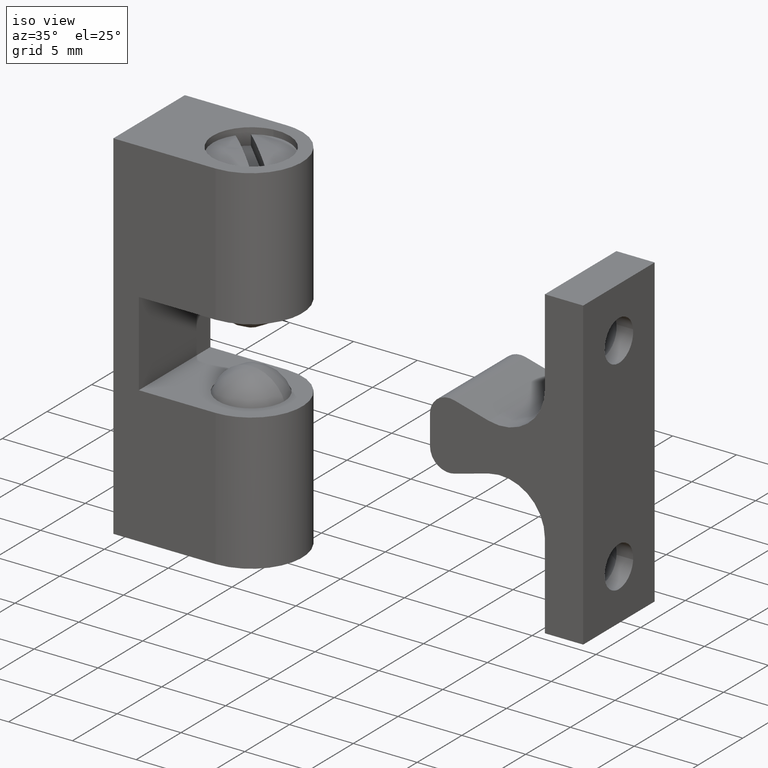
[diagram: clean part render]
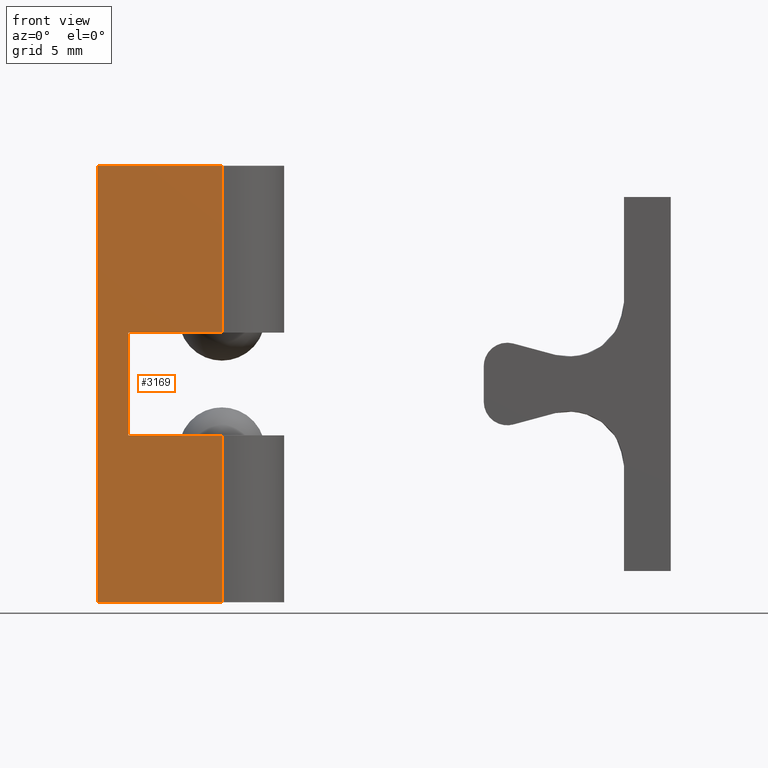
[diagram: tour spotlight — one face highlighted and labeled with its STEP entity id]
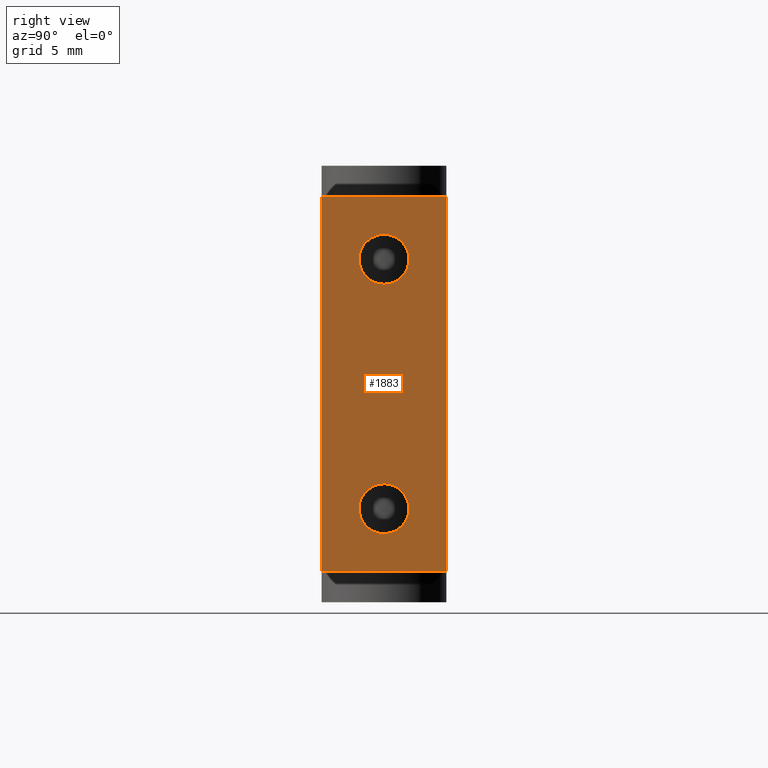
[diagram: tour spotlight — one face highlighted and labeled with its STEP entity id]
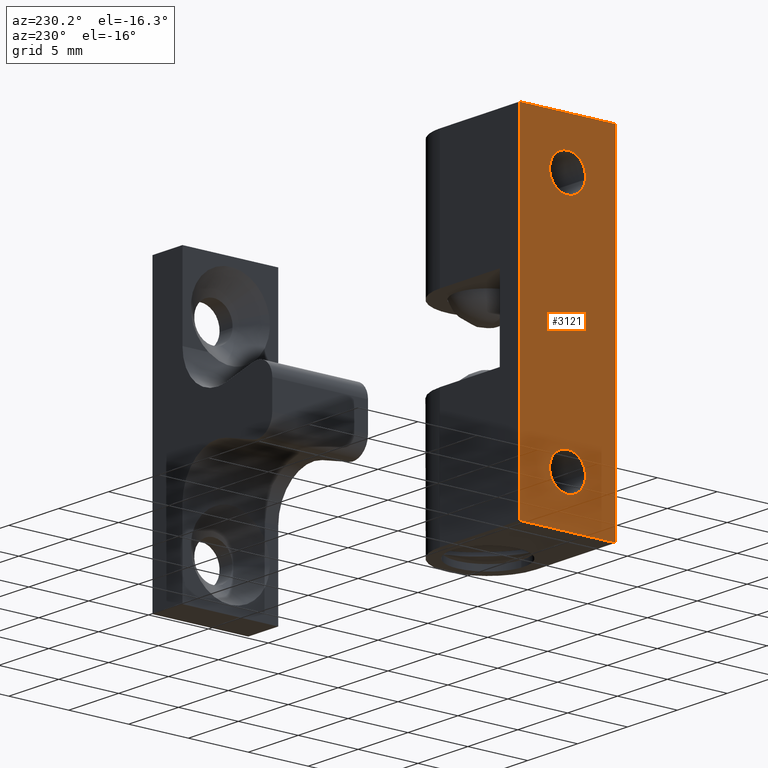
[diagram: tour spotlight — one face highlighted and labeled with its STEP entity id]
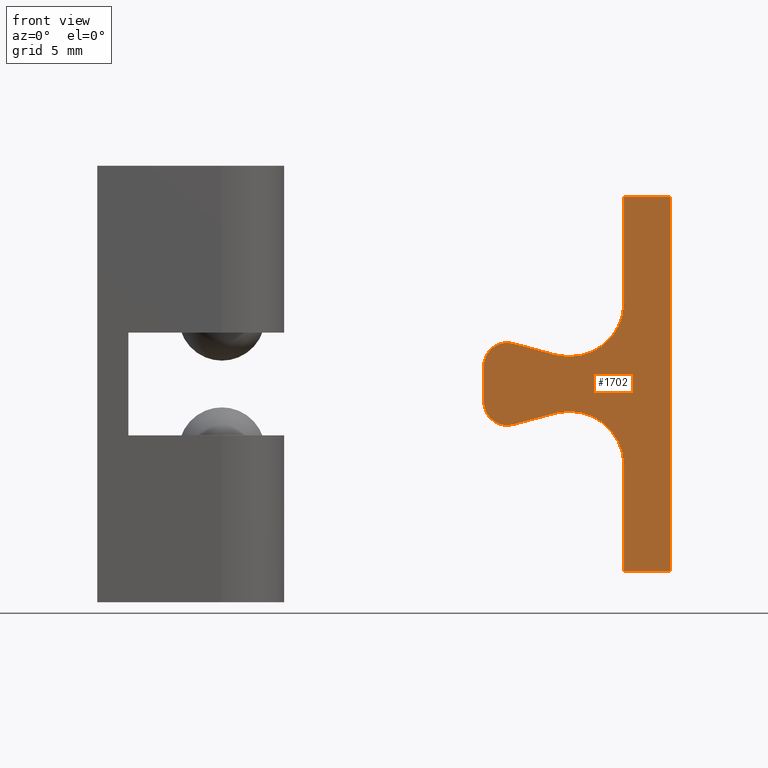
[diagram: tour spotlight — one face highlighted and labeled with its STEP entity id]
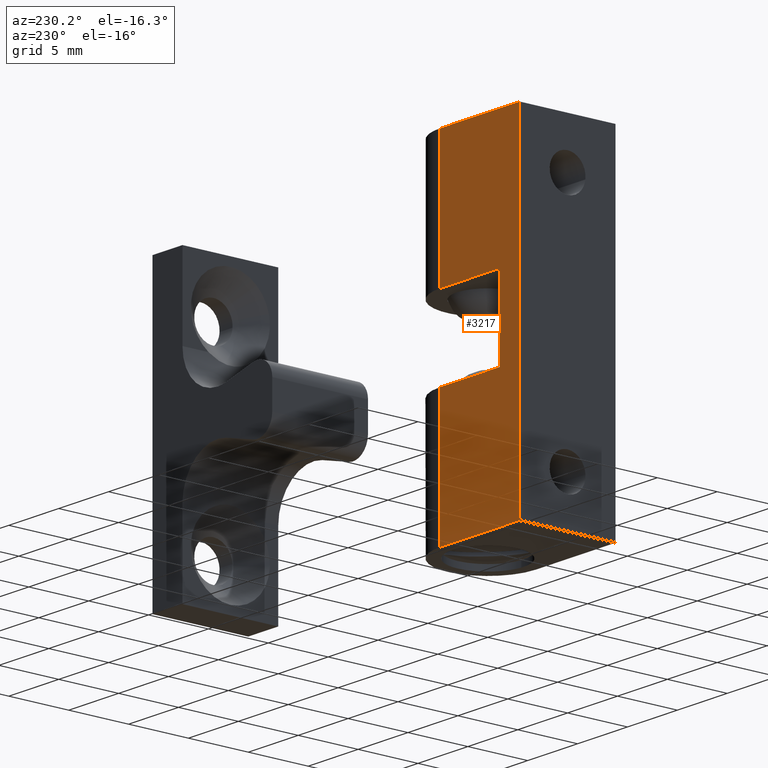
[diagram: tour spotlight — one face highlighted and labeled with its STEP entity id]
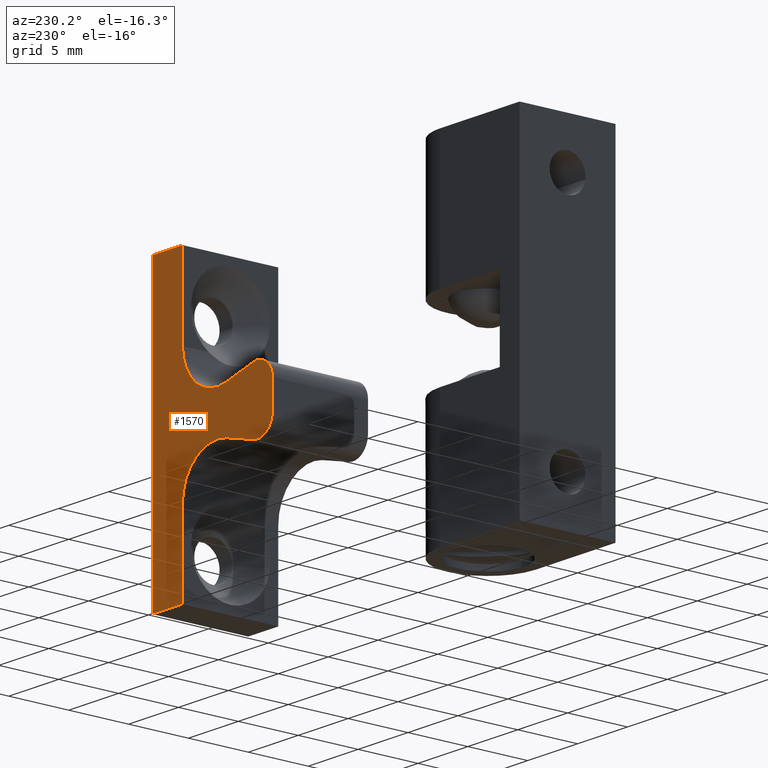
[diagram: tour spotlight — one face highlighted and labeled with its STEP entity id]
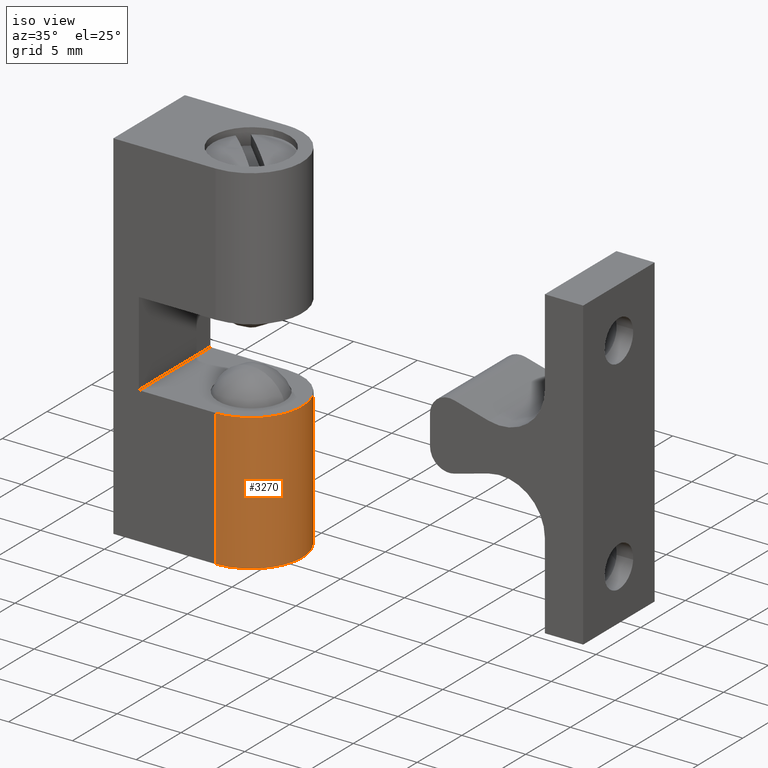
[diagram: tour spotlight — one face highlighted and labeled with its STEP entity id]
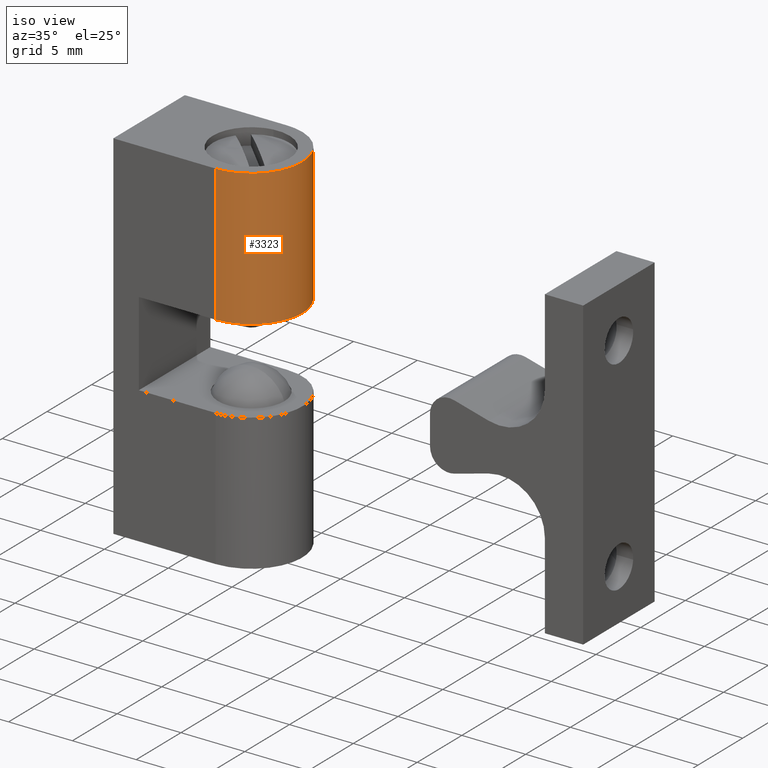
[diagram: tour spotlight — one face highlighted and labeled with its STEP entity id]
A machine part: a face-by-face anatomy tour. The part has 68 B-rep faces; the first image is the clean iso view, then the 8 largest visible faces are spotlighted one at a time (largest first), each with its STEP entity span.

Face 1 — front view, entity #3169. In plain terms, the highlighted face is a freeform B-spline surface patch.
Definition (entity closure, byte-faithful):
#3052=CARTESIAN_POINT('',(1.999900000000000,-4.0,3.300000000000000));
#3053=VERTEX_POINT('',#3052);
#3059=CARTESIAN_POINT('',(1.999900000000000,-4.0,-3.300000000000000));
#3060=VERTEX_POINT('',#3059);
#3061=CARTESIAN_POINT('',(1.999900000000000,-4.0,3.300000000000000));
#3062=CARTESIAN_POINT('',(1.999900000000000,-4.0,-3.300000000000000));
#3063=QUASI_UNIFORM_CURVE('',1,(#3061,#3062),.UNSPECIFIED.,.F.,.U.);
#3064=EDGE_CURVE('',#3053,#3060,#3063,.T.);
#3081=CARTESIAN_POINT('',(4.898425E-016,-4.0,14.0));
#3082=VERTEX_POINT('',#3081);
#3095=CARTESIAN_POINT('',(4.898425E-016,-4.0,-14.0));
#3096=VERTEX_POINT('',#3095);
#3102=CARTESIAN_POINT('',(4.898425E-016,-4.0,-14.0));
#3103=CARTESIAN_POINT('',(4.898425E-016,-4.0,14.0));
#3104=QUASI_UNIFORM_CURVE('',1,(#3102,#3103),.UNSPECIFIED.,.F.,.U.);
#3105=EDGE_CURVE('',#3096,#3082,#3104,.T.);
#3122=CARTESIAN_POINT('',(-0.399594960913378,-4.0,15.398599945730570));
#3123=CARTESIAN_POINT('',(-0.399594960913378,-4.0,-15.398600696749090));
#3124=CARTESIAN_POINT('',(8.399494603289984,-4.0,15.398599945730570));
#3125=CARTESIAN_POINT('',(8.399494603289984,-4.0,-15.398600696749090));
#3126=B_SPLINE_SURFACE_WITH_KNOTS('',1,1,((#3122,#3124),(#3123,#3125)),.UNSPECIFIED.,.F.,.F.,.U.,(2,2),(2,2),(0.0,30.797200642479670),(0.0,8.799089564203362),.UNSPECIFIED.);
#3127=ORIENTED_EDGE('',*,*,#3064,.F.);
#3128=CARTESIAN_POINT('',(7.999900000000001,-4.0,3.300000000000000));
#3129=VERTEX_POINT('',#3128);
#3130=CARTESIAN_POINT('',(7.999900000000001,-4.0,3.300000000000000));
#3131=CARTESIAN_POINT('',(1.999900000000000,-4.0,3.300000000000000));
#3132=QUASI_UNIFORM_CURVE('',1,(#3130,#3131),.UNSPECIFIED.,.F.,.U.);
#3133=EDGE_CURVE('',#3129,#3053,#3132,.T.);
#3134=ORIENTED_EDGE('',*,*,#3133,.F.);
#3135=CARTESIAN_POINT('',(7.999900000000001,-4.0,14.0));
#3136=VERTEX_POINT('',#3135);
#3137=CARTESIAN_POINT('',(7.999900000000001,-4.0,3.300000000000000));
#3138=CARTESIAN_POINT('',(7.999900000000001,-4.0,14.0));
#3139=QUASI_UNIFORM_CURVE('',1,(#3137,#3138),.UNSPECIFIED.,.F.,.U.);
#3140=EDGE_CURVE('',#3129,#3136,#3139,.T.);
#3141=ORIENTED_EDGE('',*,*,#3140,.T.);
#3142=CARTESIAN_POINT('',(4.898425E-016,-4.0,14.0));
#3143=CARTESIAN_POINT('',(7.999900000000001,-4.0,14.0));
#3144=QUASI_UNIFORM_CURVE('',1,(#3142,#3143),.UNSPECIFIED.,.F.,.U.);
#3145=EDGE_CURVE('',#3082,#3136,#3144,.T.);
#3146=ORIENTED_EDGE('',*,*,#3145,.F.);
#3147=ORIENTED_EDGE('',*,*,#3105,.F.);
#3148=CARTESIAN_POINT('',(7.999900000000001,-4.0,-14.0));
#3149=VERTEX_POINT('',#3148);
#3150=CARTESIAN_POINT('',(4.898425E-016,-4.0,-14.0));
#3151=CARTESIAN_POINT('',(7.999900000000001,-4.0,-14.0));
#3152=QUASI_UNIFORM_CURVE('',1,(#3150,#3151),.UNSPECIFIED.,.F.,.U.);
#3153=EDGE_CURVE('',#3096,#3149,#3152,.T.);
#3154=ORIENTED_EDGE('',*,*,#3153,.T.);
#3155=CARTESIAN_POINT('',(7.999900000000001,-4.0,-3.300000000000000));
#3156=VERTEX_POINT('',#3155);
#3157=CARTESIAN_POINT('',(7.999900000000001,-4.0,-14.0));
#3158=CARTESIAN_POINT('',(7.999900000000001,-4.0,-3.300000000000000));
#3159=QUASI_UNIFORM_CURVE('',1,(#3157,#3158),.UNSPECIFIED.,.F.,.U.);
#3160=EDGE_CURVE('',#3149,#3156,#3159,.T.);
#3161=ORIENTED_EDGE('',*,*,#3160,.T.);
#3162=CARTESIAN_POINT('',(1.999900000000000,-4.0,-3.300000000000000));
#3163=CARTESIAN_POINT('',(7.999900000000001,-4.0,-3.300000000000000));
#3164=QUASI_UNIFORM_CURVE('',1,(#3162,#3163),.UNSPECIFIED.,.F.,.U.);
#3165=EDGE_CURVE('',#3060,#3156,#3164,.T.);
#3166=ORIENTED_EDGE('',*,*,#3165,.F.);
#3167=EDGE_LOOP('',(#3127,#3134,#3141,#3146,#3147,#3154,#3161,#3166));
#3168=FACE_OUTER_BOUND('',#3167,.T.);
#3169=ADVANCED_FACE('',(#3168),#3126,.T.);

Face 2 — right view, entity #1883. In plain terms, the highlighted face is a freeform B-spline surface patch.
Definition (entity closure, byte-faithful):
#973=CARTESIAN_POINT('',(36.801787863870153,-1.595067733966034,-7.874465446746871));
#974=VERTEX_POINT('',#973);
#980=CARTESIAN_POINT('',(36.801787863870153,0.0,-9.600000000000001));
#981=VERTEX_POINT('',#980);
#982=CARTESIAN_POINT('',(36.801787863870153,-1.595067733966034,-7.874465446746871));
#983=CARTESIAN_POINT('',(36.801787863870167,-1.600000000000001,-7.937135828698741));
#984=CARTESIAN_POINT('',(36.801787863870153,-1.600000000000000,-8.0));
#985=CARTESIAN_POINT('',(36.801787863870160,-1.600000000000000,-9.600000000000001));
#986=CARTESIAN_POINT('',(36.801787863870153,0.0,-9.600000000000001));
#994=(BOUNDED_CURVE()B_SPLINE_CURVE(2,(#982,#983,#984,#985,#986),.UNSPECIFIED.,.F.,.U.)B_SPLINE_CURVE_WITH_KNOTS((3,2,3),(0.736331300613728,0.750000000000000,1.0),.UNSPECIFIED.)CURVE()GEOMETRIC_REPRESENTATION_ITEM()RATIONAL_B_SPLINE_CURVE((0.969723356132083,0.983986122559045,1.0,0.707106781186548,1.0))REPRESENTATION_ITEM(''));
#995=EDGE_CURVE('',#974,#981,#994,.T.);
#997=CARTESIAN_POINT('',(36.801787863870153,1.595067733966034,-8.125534553253129));
#998=VERTEX_POINT('',#997);
#999=CARTESIAN_POINT('',(36.801787863870153,0.0,-9.600000000000001));
#1000=CARTESIAN_POINT('',(36.801787863870139,1.479024786488359,-9.600000000000001));
#1001=CARTESIAN_POINT('',(36.801787863870153,1.595067733966034,-8.125534553253129));
#1009=(BOUNDED_CURVE()B_SPLINE_CURVE(2,(#999,#1000,#1001),.UNSPECIFIED.,.F.,.U.)B_SPLINE_CURVE_WITH_KNOTS((3,3),(0.0,0.236331300613728),.UNSPECIFIED.)CURVE()GEOMETRIC_REPRESENTATION_ITEM()RATIONAL_B_SPLINE_CURVE((1.0,0.723120658627502,0.969723356132083))REPRESENTATION_ITEM(''));
#1010=EDGE_CURVE('',#981,#998,#1009,.T.);
#1042=CARTESIAN_POINT('',(36.801787863870153,0.0,-6.400000000000000));
#1043=VERTEX_POINT('',#1042);
#1044=CARTESIAN_POINT('',(36.801787863870153,1.595067733966034,-8.125534553253129));
#1045=CARTESIAN_POINT('',(36.801787863870167,1.600000000000001,-8.062864171301259));
#1046=CARTESIAN_POINT('',(36.801787863870153,1.600000000000000,-8.0));
#1047=CARTESIAN_POINT('',(36.801787863870160,1.600000000000000,-6.400000000000000));
#1048=CARTESIAN_POINT('',(36.801787863870153,0.0,-6.400000000000000));
#1056=(BOUNDED_CURVE()B_SPLINE_CURVE(2,(#1044,#1045,#1046,#1047,#1048),.UNSPECIFIED.,.F.,.U.)B_SPLINE_CURVE_WITH_KNOTS((3,2,3),(0.236331300613728,0.250000000000000,0.500000000000000),.UNSPECIFIED.)CURVE()GEOMETRIC_REPRESENTATION_ITEM()RATIONAL_B_SPLINE_CURVE((0.969723356132083,0.983986122559045,1.0,0.707106781186548,1.0))REPRESENTATION_ITEM(''));
#1057=EDGE_CURVE('',#998,#1043,#1056,.T.);
#1059=CARTESIAN_POINT('',(36.801787863870153,0.0,-6.400000000000000));
#1060=CARTESIAN_POINT('',(36.801787863870139,-1.479024786488359,-6.400000000000001));
#1061=CARTESIAN_POINT('',(36.801787863870153,-1.595067733966034,-7.874465446746871));
#1069=(BOUNDED_CURVE()B_SPLINE_CURVE(2,(#1059,#1060,#1061),.UNSPECIFIED.,.F.,.U.)B_SPLINE_CURVE_WITH_KNOTS((3,3),(0.500000000000000,0.736331300613728),.UNSPECIFIED.)CURVE()GEOMETRIC_REPRESENTATION_ITEM()RATIONAL_B_SPLINE_CURVE((1.0,0.723120658627502,0.969723356132083))REPRESENTATION_ITEM(''));
#1070=EDGE_CURVE('',#1043,#974,#1069,.T.);
#1335=CARTESIAN_POINT('',(36.801787863870153,-1.597015677469277,7.902322336650867));
#1336=VERTEX_POINT('',#1335);
#1342=CARTESIAN_POINT('',(36.801787863870153,0.0,6.400000000000000));
#1343=VERTEX_POINT('',#1342);
#1344=CARTESIAN_POINT('',(36.801787863870153,0.0,6.400000000000000));
#1345=CARTESIAN_POINT('',(36.801787863870153,-1.505129706872805,6.400000000000000));
#1346=CARTESIAN_POINT('',(36.801787863870146,-1.597015677469277,7.902322336650867));
#1354=(BOUNDED_CURVE()B_SPLINE_CURVE(2,(#1344,#1345,#1346),.UNSPECIFIED.,.F.,.U.)B_SPLINE_CURVE_WITH_KNOTS((3,3),(0.500000000000000,0.739332962221794),.UNSPECIFIED.)CURVE()GEOMETRIC_REPRESENTATION_ITEM()RATIONAL_B_SPLINE_CURVE((1.0,0.719603993306801,0.976072041629965))REPRESENTATION_ITEM(''));
#1355=EDGE_CURVE('',#1343,#1336,#1354,.T.);
#1357=CARTESIAN_POINT('',(36.801787863870153,1.588815242177588,8.188854775486808));
#1358=VERTEX_POINT('',#1357);
#1359=CARTESIAN_POINT('',(36.801787863870146,1.588815242177588,8.188854775486808));
#1360=CARTESIAN_POINT('',(36.801787863870160,1.600000000000000,8.094758591479431));
#1361=CARTESIAN_POINT('',(36.801787863870153,1.600000000000000,8.0));
#1362=CARTESIAN_POINT('',(36.801787863870160,1.600000000000000,6.400000000000000));
#1363=CARTESIAN_POINT('',(36.801787863870153,0.0,6.400000000000000));
#1371=(BOUNDED_CURVE()B_SPLINE_CURVE(2,(#1359,#1360,#1361,#1362,#1363),.UNSPECIFIED.,.F.,.U.)B_SPLINE_CURVE_WITH_KNOTS((3,2,3),(0.229562473507987,0.250000000000000,0.500000000000000),.UNSPECIFIED.)CURVE()GEOMETRIC_REPRESENTATION_ITEM()RATIONAL_B_SPLINE_CURVE((0.956026754172877,0.976055948324676,1.0,0.707106781186548,1.0))REPRESENTATION_ITEM(''));
#1372=EDGE_CURVE('',#1358,#1343,#1371,.T.);
#1402=CARTESIAN_POINT('',(36.801787863870153,0.0,9.600000000000001));
#1403=VERTEX_POINT('',#1402);
#1404=CARTESIAN_POINT('',(36.801787863870153,0.0,9.600000000000001));
#1405=CARTESIAN_POINT('',(36.801787863870160,1.421079241457345,9.600000000000001));
#1406=CARTESIAN_POINT('',(36.801787863870146,1.588815242177588,8.188854775486808));
#1414=(BOUNDED_CURVE()B_SPLINE_CURVE(2,(#1404,#1405,#1406),.UNSPECIFIED.,.F.,.U.)B_SPLINE_CURVE_WITH_KNOTS((3,3),(0.0,0.229562473507987),.UNSPECIFIED.)CURVE()GEOMETRIC_REPRESENTATION_ITEM()RATIONAL_B_SPLINE_CURVE((1.0,0.731050832861872,0.956026754172876))REPRESENTATION_ITEM(''));
#1415=EDGE_CURVE('',#1403,#1358,#1414,.T.);
#1417=CARTESIAN_POINT('',(36.801787863870139,-1.597015677469276,7.902322336650867));
#1418=CARTESIAN_POINT('',(36.801787863870153,-1.600000000000000,7.951115578628634));
#1419=CARTESIAN_POINT('',(36.801787863870153,-1.600000000000000,8.0));
#1420=CARTESIAN_POINT('',(36.801787863870160,-1.600000000000000,9.600000000000001));
#1421=CARTESIAN_POINT('',(36.801787863870153,0.0,9.600000000000001));
#1429=(BOUNDED_CURVE()B_SPLINE_CURVE(2,(#1417,#1418,#1419,#1420,#1421),.UNSPECIFIED.,.F.,.U.)B_SPLINE_CURVE_WITH_KNOTS((3,2,3),(0.739332962221794,0.750000000000000,1.0),.UNSPECIFIED.)CURVE()GEOMETRIC_REPRESENTATION_ITEM()RATIONAL_B_SPLINE_CURVE((0.976072041629964,0.987502787879746,1.0,0.707106781186548,1.0))REPRESENTATION_ITEM(''));
#1430=EDGE_CURVE('',#1336,#1403,#1429,.T.);
#1477=CARTESIAN_POINT('',(36.801787863870153,4.0,12.0));
#1478=VERTEX_POINT('',#1477);
#1484=CARTESIAN_POINT('',(36.801787863870153,4.0,-12.0));
#1485=VERTEX_POINT('',#1484);
#1486=CARTESIAN_POINT('',(36.801787863870153,4.0,12.0));
#1487=CARTESIAN_POINT('',(36.801787863870153,4.0,-12.0));
#1488=QUASI_UNIFORM_CURVE('',1,(#1486,#1487),.UNSPECIFIED.,.F.,.U.);
#1489=EDGE_CURVE('',#1478,#1485,#1488,.T.);
#1657=CARTESIAN_POINT('',(36.801787863870153,-4.0,-12.0));
#1658=VERTEX_POINT('',#1657);
#1664=CARTESIAN_POINT('',(36.801787863870153,-4.0,12.0));
#1665=VERTEX_POINT('',#1664);
#1666=CARTESIAN_POINT('',(36.801787863870153,-4.0,12.0));
#1667=CARTESIAN_POINT('',(36.801787863870153,-4.0,-12.0));
#1668=QUASI_UNIFORM_CURVE('',1,(#1666,#1667),.UNSPECIFIED.,.F.,.U.);
#1669=EDGE_CURVE('',#1665,#1658,#1668,.T.);
#1846=CARTESIAN_POINT('',(36.801787863870153,-4.0,-12.0));
#1847=CARTESIAN_POINT('',(36.801787863870153,4.0,-12.0));
#1848=QUASI_UNIFORM_CURVE('',1,(#1846,#1847),.UNSPECIFIED.,.F.,.U.);
#1849=EDGE_CURVE('',#1658,#1485,#1848,.T.);
#1856=CARTESIAN_POINT('',(36.801787863870153,-4.399599984494448,13.198799953483350));
#1857=CARTESIAN_POINT('',(36.801787863870153,-4.399599984494448,-13.198800597213509));
#1858=CARTESIAN_POINT('',(36.801787863870153,4.399600199071169,13.198799953483350));
#1859=CARTESIAN_POINT('',(36.801787863870153,4.399600199071169,-13.198800597213509));
#1860=B_SPLINE_SURFACE_WITH_KNOTS('',1,1,((#1856,#1858),(#1857,#1859)),.UNSPECIFIED.,.F.,.F.,.U.,(2,2),(2,2),(0.0,26.397600550696851),(0.0,8.799200183565617),.UNSPECIFIED.);
#1861=ORIENTED_EDGE('',*,*,#1489,.F.);
#1862=CARTESIAN_POINT('',(36.801787863870153,-4.0,12.0));
#1863=CARTESIAN_POINT('',(36.801787863870153,4.0,12.0));
#1864=QUASI_UNIFORM_CURVE('',1,(#1862,#1863),.UNSPECIFIED.,.F.,.U.);
#1865=EDGE_CURVE('',#1665,#1478,#1864,.T.);
#1866=ORIENTED_EDGE('',*,*,#1865,.F.);
#1867=ORIENTED_EDGE('',*,*,#1669,.T.);
#1868=ORIENTED_EDGE('',*,*,#1849,.T.);
#1869=EDGE_LOOP('',(#1861,#1866,#1867,#1868));
#1870=FACE_OUTER_BOUND('',#1869,.T.);
#1871=ORIENTED_EDGE('',*,*,#1355,.T.);
#1872=ORIENTED_EDGE('',*,*,#1430,.T.);
#1873=ORIENTED_EDGE('',*,*,#1415,.T.);
#1874=ORIENTED_EDGE('',*,*,#1372,.T.);
#1875=EDGE_LOOP('',(#1871,#1872,#1873,#1874));
#1876=FACE_BOUND('',#1875,.T.);
#1877=ORIENTED_EDGE('',*,*,#1070,.F.);
#1878=ORIENTED_EDGE('',*,*,#1057,.F.);
#1879=ORIENTED_EDGE('',*,*,#1010,.F.);
#1880=ORIENTED_EDGE('',*,*,#995,.F.);
#1881=EDGE_LOOP('',(#1877,#1878,#1879,#1880));
#1882=FACE_BOUND('',#1881,.T.);
#1883=ADVANCED_FACE('',(#1870,#1876,#1882),#1860,.T.);

Face 3 — auxiliary view, entity #3121. In plain terms, the highlighted face is a freeform B-spline surface patch.
Definition (entity closure, byte-faithful):
#2039=CARTESIAN_POINT('',(5.551115E-017,-1.495376000593257,-9.882311356326465));
#2040=VERTEX_POINT('',#2039);
#2046=CARTESIAN_POINT('',(0.0,0.0,-8.500000000000000));
#2047=VERTEX_POINT('',#2046);
#2048=CARTESIAN_POINT('',(0.0,0.0,-8.500000000000000));
#2049=CARTESIAN_POINT('',(0.0,-1.386585737335205,-8.500000000000000));
#2050=CARTESIAN_POINT('',(5.551115E-017,-1.495376000593256,-9.882311356326465));
#2058=(BOUNDED_CURVE()B_SPLINE_CURVE(2,(#2048,#2049,#2050),.UNSPECIFIED.,.F.,.U.)B_SPLINE_CURVE_WITH_KNOTS((3,3),(0.0,0.236331300614020),.UNSPECIFIED.)CURVE()GEOMETRIC_REPRESENTATION_ITEM()RATIONAL_B_SPLINE_CURVE((1.0,0.723120658627160,0.969723356132692))REPRESENTATION_ITEM(''));
#2059=EDGE_CURVE('',#2047,#2040,#2058,.T.);
#2061=CARTESIAN_POINT('',(5.551115E-017,1.495376000593256,-10.117688643673530));
#2062=VERTEX_POINT('',#2061);
#2063=CARTESIAN_POINT('',(5.551115E-017,1.495376000593257,-10.117688643673533));
#2064=CARTESIAN_POINT('',(0.0,1.500000000000000,-10.058935160593649));
#2065=CARTESIAN_POINT('',(0.0,1.500000000000000,-10.0));
#2066=CARTESIAN_POINT('',(0.0,1.500000000000000,-8.500000000000002));
#2067=CARTESIAN_POINT('',(0.0,0.0,-8.500000000000000));
#2075=(BOUNDED_CURVE()B_SPLINE_CURVE(2,(#2063,#2064,#2065,#2066,#2067),.UNSPECIFIED.,.F.,.U.)B_SPLINE_CURVE_WITH_KNOTS((3,2,3),(0.736331300614020,0.750000000000000,1.0),.UNSPECIFIED.)CURVE()GEOMETRIC_REPRESENTATION_ITEM()RATIONAL_B_SPLINE_CURVE((0.969723356132693,0.983986122559388,1.0,0.707106781186548,1.0))REPRESENTATION_ITEM(''));
#2076=EDGE_CURVE('',#2062,#2047,#2075,.T.);
#2152=CARTESIAN_POINT('',(0.0,0.0,-11.500000000000000));
#2153=VERTEX_POINT('',#2152);
#2154=CARTESIAN_POINT('',(0.0,0.0,-11.500000000000000));
#2155=CARTESIAN_POINT('',(0.0,1.386585737335215,-11.499999999999998));
#2156=CARTESIAN_POINT('',(5.551115E-017,1.495376000593256,-10.117688643673533));
#2164=(BOUNDED_CURVE()B_SPLINE_CURVE(2,(#2154,#2155,#2156),.UNSPECIFIED.,.F.,.U.)B_SPLINE_CURVE_WITH_KNOTS((3,3),(0.500000000000000,0.736331300614021),.UNSPECIFIED.)CURVE()GEOMETRIC_REPRESENTATION_ITEM()RATIONAL_B_SPLINE_CURVE((1.0,0.723120658627159,0.969723356132694))REPRESENTATION_ITEM(''));
#2165=EDGE_CURVE('',#2153,#2062,#2164,.T.);
#2167=CARTESIAN_POINT('',(5.551115E-017,-1.495376000593256,-9.882311356326465));
#2168=CARTESIAN_POINT('',(0.0,-1.500000000000000,-9.941064839406350));
#2169=CARTESIAN_POINT('',(0.0,-1.500000000000000,-10.0));
#2170=CARTESIAN_POINT('',(0.0,-1.500000000000000,-11.500000000000000));
#2171=CARTESIAN_POINT('',(0.0,0.0,-11.500000000000000));
#2179=(BOUNDED_CURVE()B_SPLINE_CURVE(2,(#2167,#2168,#2169,#2170,#2171),.UNSPECIFIED.,.F.,.U.)B_SPLINE_CURVE_WITH_KNOTS((3,2,3),(0.236331300614020,0.250000000000000,0.500000000000000),.UNSPECIFIED.)CURVE()GEOMETRIC_REPRESENTATION_ITEM()RATIONAL_B_SPLINE_CURVE((0.969723356132692,0.983986122559387,1.0,0.707106781186548,1.0))REPRESENTATION_ITEM(''));
#2180=EDGE_CURVE('',#2040,#2153,#2179,.T.);
#2227=CARTESIAN_POINT('',(5.678856E-017,-1.489514289535153,9.822948647927817));
#2228=VERTEX_POINT('',#2227);
#2234=CARTESIAN_POINT('',(0.0,0.0,11.500000000000000));
#2235=VERTEX_POINT('',#2234);
#2236=CARTESIAN_POINT('',(5.678856E-017,-1.489514289535153,9.822948647927817));
#2237=CARTESIAN_POINT('',(0.0,-1.500000000000001,9.911163820434169));
#2238=CARTESIAN_POINT('',(0.0,-1.500000000000000,10.0));
#2239=CARTESIAN_POINT('',(0.0,-1.500000000000000,11.500000000000000));
#2240=CARTESIAN_POINT('',(0.0,0.0,11.500000000000000));
#2248=(BOUNDED_CURVE()B_SPLINE_CURVE(2,(#2236,#2237,#2238,#2239,#2240),.UNSPECIFIED.,.F.,.U.)B_SPLINE_CURVE_WITH_KNOTS((3,2,3),(0.229562473495891,0.250000000000000,0.500000000000000),.UNSPECIFIED.)CURVE()GEOMETRIC_REPRESENTATION_ITEM()RATIONAL_B_SPLINE_CURVE((0.956026754149169,0.976055948310506,1.0,0.707106781186548,1.0))REPRESENTATION_ITEM(''));
#2249=EDGE_CURVE('',#2228,#2235,#2248,.T.);
#2251=CARTESIAN_POINT('',(5.551115E-017,1.497202197626948,10.091572809397981));
#2252=VERTEX_POINT('',#2251);
#2253=CARTESIAN_POINT('',(0.0,0.0,11.500000000000000));
#2254=CARTESIAN_POINT('',(0.0,1.411059100177828,11.500000000000000));
#2255=CARTESIAN_POINT('',(5.551115E-017,1.497202197626947,10.091572809397976));
#2263=(BOUNDED_CURVE()B_SPLINE_CURVE(2,(#2253,#2254,#2255),.UNSPECIFIED.,.F.,.U.)B_SPLINE_CURVE_WITH_KNOTS((3,3),(0.500000000000000,0.739332962219911),.UNSPECIFIED.)CURVE()GEOMETRIC_REPRESENTATION_ITEM()RATIONAL_B_SPLINE_CURVE((1.0,0.719603993309007,0.976072041625930))REPRESENTATION_ITEM(''));
#2264=EDGE_CURVE('',#2235,#2252,#2263,.T.);
#2338=CARTESIAN_POINT('',(0.0,0.0,8.500000000000000));
#2339=VERTEX_POINT('',#2338);
#2340=CARTESIAN_POINT('',(5.551115E-017,1.497202197626948,10.091572809397976));
#2341=CARTESIAN_POINT('',(0.0,1.500000000000000,10.045829145043841));
#2342=CARTESIAN_POINT('',(0.0,1.500000000000000,10.0));
#2343=CARTESIAN_POINT('',(0.0,1.500000000000000,8.500000000000002));
#2344=CARTESIAN_POINT('',(0.0,0.0,8.500000000000000));
#2352=(BOUNDED_CURVE()B_SPLINE_CURVE(2,(#2340,#2341,#2342,#2343,#2344),.UNSPECIFIED.,.F.,.U.)B_SPLINE_CURVE_WITH_KNOTS((3,2,3),(0.739332962219912,0.750000000000000,1.0),.UNSPECIFIED.)CURVE()GEOMETRIC_REPRESENTATION_ITEM()RATIONAL_B_SPLINE_CURVE((0.976072041625932,0.987502787877542,1.0,0.707106781186548,1.0))REPRESENTATION_ITEM(''));
#2353=EDGE_CURVE('',#2252,#2339,#2352,.T.);
#2355=CARTESIAN_POINT('',(0.0,0.0,8.500000000000000));
#2356=CARTESIAN_POINT('',(0.0,-1.332261788770242,8.500000000000000));
#2357=CARTESIAN_POINT('',(5.678856E-017,-1.489514289535153,9.822948647927817));
#2365=(BOUNDED_CURVE()B_SPLINE_CURVE(2,(#2355,#2356,#2357),.UNSPECIFIED.,.F.,.U.)B_SPLINE_CURVE_WITH_KNOTS((3,3),(0.0,0.229562473495891),.UNSPECIFIED.)CURVE()GEOMETRIC_REPRESENTATION_ITEM()RATIONAL_B_SPLINE_CURVE((1.0,0.731050832876042,0.956026754149169))REPRESENTATION_ITEM(''));
#2366=EDGE_CURVE('',#2339,#2228,#2365,.T.);
#3074=CARTESIAN_POINT('',(-4.898425E-016,4.399599984494447,-15.398599945730570));
#3075=CARTESIAN_POINT('',(-4.898425E-016,-4.399600199071168,-15.398599945730570));
#3076=CARTESIAN_POINT('',(-4.898425E-016,4.399599984494447,15.398600696749090));
#3077=CARTESIAN_POINT('',(-4.898425E-016,-4.399600199071168,15.398600696749090));
#3078=B_SPLINE_SURFACE_WITH_KNOTS('',1,1,((#3074,#3076),(#3075,#3077)),.UNSPECIFIED.,.F.,.F.,.U.,(2,2),(2,2),(0.0,8.799200183565615),(0.0,30.797200642479670),.UNSPECIFIED.);
#3079=CARTESIAN_POINT('',(-4.898425E-016,4.0,14.0));
#3080=VERTEX_POINT('',#3079);
#3081=CARTESIAN_POINT('',(4.898425E-016,-4.0,14.0));
#3082=VERTEX_POINT('',#3081);
#3083=CARTESIAN_POINT('',(-4.898425E-016,4.0,14.0));
#3084=CARTESIAN_POINT('',(4.898425E-016,-4.0,14.0));
#3085=QUASI_UNIFORM_CURVE('',1,(#3083,#3084),.UNSPECIFIED.,.F.,.U.);
#3086=EDGE_CURVE('',#3080,#3082,#3085,.T.);
#3087=ORIENTED_EDGE('',*,*,#3086,.F.);
#3088=CARTESIAN_POINT('',(-4.898425E-016,4.0,-14.0));
#3089=VERTEX_POINT('',#3088);
#3090=CARTESIAN_POINT('',(-4.898425E-016,4.0,-14.0));
#3091=CARTESIAN_POINT('',(-4.898425E-016,4.0,14.0));
#3092=QUASI_UNIFORM_CURVE('',1,(#3090,#3091),.UNSPECIFIED.,.F.,.U.);
#3093=EDGE_CURVE('',#3089,#3080,#3092,.T.);
#3094=ORIENTED_EDGE('',*,*,#3093,.F.);
#3095=CARTESIAN_POINT('',(4.898425E-016,-4.0,-14.0));
#3096=VERTEX_POINT('',#3095);
#3097=CARTESIAN_POINT('',(-4.898425E-016,4.0,-14.0));
#3098=CARTESIAN_POINT('',(4.898425E-016,-4.0,-14.0));
#3099=QUASI_UNIFORM_CURVE('',1,(#3097,#3098),.UNSPECIFIED.,.F.,.U.);
#3100=EDGE_CURVE('',#3089,#3096,#3099,.T.);
#3101=ORIENTED_EDGE('',*,*,#3100,.T.);
#3102=CARTESIAN_POINT('',(4.898425E-016,-4.0,-14.0));
#3103=CARTESIAN_POINT('',(4.898425E-016,-4.0,14.0));
#3104=QUASI_UNIFORM_CURVE('',1,(#3102,#3103),.UNSPECIFIED.,.F.,.U.);
#3105=EDGE_CURVE('',#3096,#3082,#3104,.T.);
#3106=ORIENTED_EDGE('',*,*,#3105,.T.);
#3107=EDGE_LOOP('',(#3087,#3094,#3101,#3106));
#3108=FACE_OUTER_BOUND('',#3107,.T.);
#3109=ORIENTED_EDGE('',*,*,#2264,.F.);
#3110=ORIENTED_EDGE('',*,*,#2249,.F.);
#3111=ORIENTED_EDGE('',*,*,#2366,.F.);
#3112=ORIENTED_EDGE('',*,*,#2353,.F.);
#3113=EDGE_LOOP('',(#3109,#3110,#3111,#3112));
#3114=FACE_BOUND('',#3113,.T.);
#3115=ORIENTED_EDGE('',*,*,#2165,.T.);
#3116=ORIENTED_EDGE('',*,*,#2076,.T.);
#3117=ORIENTED_EDGE('',*,*,#2059,.T.);
#3118=ORIENTED_EDGE('',*,*,#2180,.T.);
#3119=EDGE_LOOP('',(#3115,#3116,#3117,#3118));
#3120=FACE_BOUND('',#3119,.T.);
#3121=ADVANCED_FACE('',(#3108,#3114,#3120),#3078,.T.);

Face 4 — front view, entity #1702. In plain terms, the highlighted face is a freeform B-spline surface patch.
Definition (entity closure, byte-faithful):
#1571=CARTESIAN_POINT('',(24.202388337718080,-4.0,13.198799953483350));
#1572=CARTESIAN_POINT('',(37.401188141040699,-4.0,13.198799953483350));
#1573=CARTESIAN_POINT('',(24.202388337718080,-4.0,-13.198800597213509));
#1574=CARTESIAN_POINT('',(37.401188141040699,-4.0,-13.198800597213509));
#1575=B_SPLINE_SURFACE_WITH_KNOTS('',1,1,((#1571,#1573),(#1572,#1574)),.UNSPECIFIED.,.F.,.F.,.U.,(2,2),(2,2),(0.0,13.198799803322620),(0.0,26.397600550696851),.UNSPECIFIED.);
#1576=CARTESIAN_POINT('',(26.692787863870048,-4.0,2.598300000000000));
#1577=VERTEX_POINT('',#1576);
#1578=CARTESIAN_POINT('',(29.410041311224550,-4.0,1.865507706339850));
#1579=VERTEX_POINT('',#1578);
#1580=CARTESIAN_POINT('',(26.692787863870048,-4.0,2.598300000000000));
#1581=CARTESIAN_POINT('',(29.410041311224550,-4.0,1.865507706339850));
#1582=QUASI_UNIFORM_CURVE('',1,(#1580,#1581),.UNSPECIFIED.,.F.,.U.);
#1583=EDGE_CURVE('',#1577,#1579,#1582,.T.);
#1584=ORIENTED_EDGE('',*,*,#1583,.F.);
#1585=CARTESIAN_POINT('',(24.801787863870150,-4.0,1.150000000000000));
#1586=VERTEX_POINT('',#1585);
#1587=CARTESIAN_POINT('',(26.692787863870048,-4.0,2.598299999999994));
#1588=CARTESIAN_POINT('',(25.977781930284191,-4.0,2.791123690614171));
#1589=CARTESIAN_POINT('',(25.389856544261669,-4.0,2.340836891790024));
#1590=CARTESIAN_POINT('',(24.801931158239132,-4.0,1.890550092965877));
#1591=CARTESIAN_POINT('',(24.801787863870111,-4.0,1.150000000000001));
#1599=(BOUNDED_CURVE()B_SPLINE_CURVE(2,(#1587,#1588,#1589,#1590,#1591),.UNSPECIFIED.,.F.,.U.)B_SPLINE_CURVE_WITH_KNOTS((3,2,3),(0.0,0.500000000000000,1.0),.UNSPECIFIED.)CURVE()GEOMETRIC_REPRESENTATION_ITEM()RATIONAL_B_SPLINE_CURVE((1.0,0.896715470118178,1.0,0.896715470118178,1.0))REPRESENTATION_ITEM(''));
#1600=EDGE_CURVE('',#1577,#1586,#1599,.T.);
#1601=ORIENTED_EDGE('',*,*,#1600,.T.);
#1602=CARTESIAN_POINT('',(24.801787863870100,-4.0,-1.149999999999976));
#1603=VERTEX_POINT('',#1602);
#1604=CARTESIAN_POINT('',(24.801787863870100,-4.0,-1.149999999999976));
#1605=CARTESIAN_POINT('',(24.801787863870150,-4.0,1.150000000000000));
#1606=QUASI_UNIFORM_CURVE('',1,(#1604,#1605),.UNSPECIFIED.,.F.,.U.);
#1607=EDGE_CURVE('',#1603,#1586,#1606,.T.);
#1608=ORIENTED_EDGE('',*,*,#1607,.F.);
#1609=CARTESIAN_POINT('',(26.692787892644400,-4.0,-2.598299992240095));
#1610=VERTEX_POINT('',#1609);
#1611=CARTESIAN_POINT('',(24.801787863870100,-4.0,-1.149999999999976));
#1612=CARTESIAN_POINT('',(24.801931158240908,-4.0,-1.890550102231618));
#1613=CARTESIAN_POINT('',(25.389856556091740,-4.0,-2.340836900850575));
#1614=CARTESIAN_POINT('',(25.977781953942582,-4.0,-2.791123699469534));
#1615=CARTESIAN_POINT('',(26.692787892644400,-4.0,-2.598299992240091));
#1623=(BOUNDED_CURVE()B_SPLINE_CURVE(2,(#1611,#1612,#1613,#1614,#1615),.UNSPECIFIED.,.F.,.U.)B_SPLINE_CURVE_WITH_KNOTS((3,2,3),(0.0,0.500000000000000,1.0),.UNSPECIFIED.)CURVE()GEOMETRIC_REPRESENTATION_ITEM()RATIONAL_B_SPLINE_CURVE((1.0,0.896715467920223,1.0,0.896715467920223,1.0))REPRESENTATION_ITEM(''));
#1624=EDGE_CURVE('',#1603,#1610,#1623,.T.);
#1625=ORIENTED_EDGE('',*,*,#1624,.T.);
#1626=CARTESIAN_POINT('',(29.410041311223349,-4.0,-1.865507706340160));
#1627=VERTEX_POINT('',#1626);
#1628=CARTESIAN_POINT('',(29.410041311223349,-4.0,-1.865507706340160));
#1629=CARTESIAN_POINT('',(26.692787892644400,-4.0,-2.598299992240095));
#1630=QUASI_UNIFORM_CURVE('',1,(#1628,#1629),.UNSPECIFIED.,.F.,.U.);
#1631=EDGE_CURVE('',#1627,#1610,#1630,.T.);
#1632=ORIENTED_EDGE('',*,*,#1631,.F.);
#1633=CARTESIAN_POINT('',(33.801787863870153,-4.0,-5.250000000000000));
#1634=VERTEX_POINT('',#1633);
#1635=CARTESIAN_POINT('',(33.801787863870153,-4.0,-5.250000000000000));
#1636=CARTESIAN_POINT('',(33.801787863870054,-4.0,-3.528529460137828));
#1637=CARTESIAN_POINT('',(32.438243698393272,-4.0,-2.477716380466869));
#1638=CARTESIAN_POINT('',(31.074699532916483,-4.0,-1.426903300795909));
#1639=CARTESIAN_POINT('',(29.410041311223349,-4.0,-1.865507706340178));
#1647=(BOUNDED_CURVE()B_SPLINE_CURVE(2,(#1635,#1636,#1637,#1638,#1639),.UNSPECIFIED.,.F.,.U.)B_SPLINE_CURVE_WITH_KNOTS((3,2,3),(0.0,0.500000000000000,1.0),.UNSPECIFIED.)CURVE()GEOMETRIC_REPRESENTATION_ITEM()RATIONAL_B_SPLINE_CURVE((1.0,0.897333815455797,1.0,0.897333815455797,1.0))REPRESENTATION_ITEM(''));
#1648=EDGE_CURVE('',#1634,#1627,#1647,.T.);
#1649=ORIENTED_EDGE('',*,*,#1648,.F.);
#1650=CARTESIAN_POINT('',(33.801787863870153,-4.0,-12.0));
#1651=VERTEX_POINT('',#1650);
#1652=CARTESIAN_POINT('',(33.801787863870153,-4.0,-12.0));
#1653=CARTESIAN_POINT('',(33.801787863870153,-4.0,-5.250000000000000));
#1654=QUASI_UNIFORM_CURVE('',1,(#1652,#1653),.UNSPECIFIED.,.F.,.U.);
#1655=EDGE_CURVE('',#1651,#1634,#1654,.T.);
#1656=ORIENTED_EDGE('',*,*,#1655,.F.);
#1657=CARTESIAN_POINT('',(36.801787863870153,-4.0,-12.0));
#1658=VERTEX_POINT('',#1657);
#1659=CARTESIAN_POINT('',(36.801787863870153,-4.0,-12.0));
#1660=CARTESIAN_POINT('',(33.801787863870153,-4.0,-12.0));
#1661=QUASI_UNIFORM_CURVE('',1,(#1659,#1660),.UNSPECIFIED.,.F.,.U.);
#1662=EDGE_CURVE('',#1658,#1651,#1661,.T.);
#1663=ORIENTED_EDGE('',*,*,#1662,.F.);
#1664=CARTESIAN_POINT('',(36.801787863870153,-4.0,12.0));
#1665=VERTEX_POINT('',#1664);
#1666=CARTESIAN_POINT('',(36.801787863870153,-4.0,12.0));
#1667=CARTESIAN_POINT('',(36.801787863870153,-4.0,-12.0));
#1668=QUASI_UNIFORM_CURVE('',1,(#1666,#1667),.UNSPECIFIED.,.F.,.U.);
#1669=EDGE_CURVE('',#1665,#1658,#1668,.T.);
#1670=ORIENTED_EDGE('',*,*,#1669,.F.);
#1671=CARTESIAN_POINT('',(33.801787863870153,-4.0,12.0));
#1672=VERTEX_POINT('',#1671);
#1673=CARTESIAN_POINT('',(33.801787863870153,-4.0,12.0));
#1674=CARTESIAN_POINT('',(36.801787863870153,-4.0,12.0));
#1675=QUASI_UNIFORM_CURVE('',1,(#1673,#1674),.UNSPECIFIED.,.F.,.U.);
#1676=EDGE_CURVE('',#1672,#1665,#1675,.T.);
#1677=ORIENTED_EDGE('',*,*,#1676,.F.);
#1678=CARTESIAN_POINT('',(33.801787863870047,-4.0,5.250000000000000));
#1679=VERTEX_POINT('',#1678);
#1680=CARTESIAN_POINT('',(33.801787863870047,-4.0,5.250000000000000));
#1681=CARTESIAN_POINT('',(33.801787863870153,-4.0,12.0));
#1682=QUASI_UNIFORM_CURVE('',1,(#1680,#1681),.UNSPECIFIED.,.F.,.U.);
#1683=EDGE_CURVE('',#1679,#1672,#1682,.T.);
#1684=ORIENTED_EDGE('',*,*,#1683,.F.);
#1685=CARTESIAN_POINT('',(29.410041311224550,-4.0,1.865507706339862));
#1686=CARTESIAN_POINT('',(31.074699532917457,-4.0,1.426903300796280));
#1687=CARTESIAN_POINT('',(32.438243698393748,-4.0,2.477716380467245));
#1688=CARTESIAN_POINT('',(33.801787863870054,-4.0,3.528529460138213));
#1689=CARTESIAN_POINT('',(33.801787863870047,-4.0,5.250000000000000));
#1697=(BOUNDED_CURVE()B_SPLINE_CURVE(2,(#1685,#1686,#1687,#1688,#1689),.UNSPECIFIED.,.F.,.U.)B_SPLINE_CURVE_WITH_KNOTS((3,2,3),(0.0,0.500000000000000,1.0),.UNSPECIFIED.)CURVE()GEOMETRIC_REPRESENTATION_ITEM()RATIONAL_B_SPLINE_CURVE((1.0,0.897333815455836,1.0,0.897333815455836,1.0))REPRESENTATION_ITEM(''));
#1698=EDGE_CURVE('',#1579,#1679,#1697,.T.);
#1699=ORIENTED_EDGE('',*,*,#1698,.F.);
#1700=EDGE_LOOP('',(#1584,#1601,#1608,#1625,#1632,#1649,#1656,#1663,#1670,#1677,#1684,#1699));
#1701=FACE_OUTER_BOUND('',#1700,.T.);
#1702=ADVANCED_FACE('',(#1701),#1575,.F.);

Face 5 — auxiliary view, entity #3217. In plain terms, the highlighted face is a freeform B-spline surface patch.
Definition (entity closure, byte-faithful):
#3043=CARTESIAN_POINT('',(1.999900000000000,4.0,3.300000000000000));
#3044=VERTEX_POINT('',#3043);
#3045=CARTESIAN_POINT('',(1.999900000000000,4.0,-3.300000000000000));
#3046=VERTEX_POINT('',#3045);
#3047=CARTESIAN_POINT('',(1.999900000000000,4.0,3.300000000000000));
#3048=CARTESIAN_POINT('',(1.999900000000000,4.0,-3.300000000000000));
#3049=QUASI_UNIFORM_CURVE('',1,(#3047,#3048),.UNSPECIFIED.,.F.,.U.);
#3050=EDGE_CURVE('',#3044,#3046,#3049,.T.);
#3079=CARTESIAN_POINT('',(-4.898425E-016,4.0,14.0));
#3080=VERTEX_POINT('',#3079);
#3088=CARTESIAN_POINT('',(-4.898425E-016,4.0,-14.0));
#3089=VERTEX_POINT('',#3088);
#3090=CARTESIAN_POINT('',(-4.898425E-016,4.0,-14.0));
#3091=CARTESIAN_POINT('',(-4.898425E-016,4.0,14.0));
#3092=QUASI_UNIFORM_CURVE('',1,(#3090,#3091),.UNSPECIFIED.,.F.,.U.);
#3093=EDGE_CURVE('',#3089,#3080,#3092,.T.);
#3170=CARTESIAN_POINT('',(-0.399594960913380,4.0,-15.398599945730570));
#3171=CARTESIAN_POINT('',(-0.399594960913380,4.0,15.398600696749090));
#3172=CARTESIAN_POINT('',(8.399494603289984,4.0,-15.398599945730570));
#3173=CARTESIAN_POINT('',(8.399494603289984,4.0,15.398600696749090));
#3174=B_SPLINE_SURFACE_WITH_KNOTS('',1,1,((#3170,#3172),(#3171,#3173)),.UNSPECIFIED.,.F.,.F.,.U.,(2,2),(2,2),(0.0,30.797200642479670),(0.0,8.799089564203364),.UNSPECIFIED.);
#3175=CARTESIAN_POINT('',(7.999900000000001,4.0,3.300000000000000));
#3176=VERTEX_POINT('',#3175);
#3177=CARTESIAN_POINT('',(7.999900000000001,4.0,14.0));
#3178=VERTEX_POINT('',#3177);
#3179=CARTESIAN_POINT('',(7.999900000000001,4.0,3.300000000000000));
#3180=CARTESIAN_POINT('',(7.999900000000001,4.0,14.0));
#3181=QUASI_UNIFORM_CURVE('',1,(#3179,#3180),.UNSPECIFIED.,.F.,.U.);
#3182=EDGE_CURVE('',#3176,#3178,#3181,.T.);
#3183=ORIENTED_EDGE('',*,*,#3182,.F.);
#3184=CARTESIAN_POINT('',(7.999900000000001,4.0,3.300000000000000));
#3185=CARTESIAN_POINT('',(1.999900000000000,4.0,3.300000000000000));
#3186=QUASI_UNIFORM_CURVE('',1,(#3184,#3185),.UNSPECIFIED.,.F.,.U.);
#3187=EDGE_CURVE('',#3176,#3044,#3186,.T.);
#3188=ORIENTED_EDGE('',*,*,#3187,.T.);
#3189=ORIENTED_EDGE('',*,*,#3050,.T.);
#3190=CARTESIAN_POINT('',(7.999900000000001,4.0,-3.300000000000000));
#3191=VERTEX_POINT('',#3190);
#3192=CARTESIAN_POINT('',(1.999900000000000,4.0,-3.300000000000000));
#3193=CARTESIAN_POINT('',(7.999900000000001,4.0,-3.300000000000000));
#3194=QUASI_UNIFORM_CURVE('',1,(#3192,#3193),.UNSPECIFIED.,.F.,.U.);
#3195=EDGE_CURVE('',#3046,#3191,#3194,.T.);
#3196=ORIENTED_EDGE('',*,*,#3195,.T.);
#3197=CARTESIAN_POINT('',(7.999900000000001,4.0,-14.0));
#3198=VERTEX_POINT('',#3197);
#3199=CARTESIAN_POINT('',(7.999900000000001,4.0,-14.0));
#3200=CARTESIAN_POINT('',(7.999900000000001,4.0,-3.300000000000000));
#3201=QUASI_UNIFORM_CURVE('',1,(#3199,#3200),.UNSPECIFIED.,.F.,.U.);
#3202=EDGE_CURVE('',#3198,#3191,#3201,.T.);
#3203=ORIENTED_EDGE('',*,*,#3202,.F.);
#3204=CARTESIAN_POINT('',(7.999900000000001,4.0,-14.0));
#3205=CARTESIAN_POINT('',(-4.898425E-016,4.0,-14.0));
#3206=QUASI_UNIFORM_CURVE('',1,(#3204,#3205),.UNSPECIFIED.,.F.,.U.);
#3207=EDGE_CURVE('',#3198,#3089,#3206,.T.);
#3208=ORIENTED_EDGE('',*,*,#3207,.T.);
#3209=ORIENTED_EDGE('',*,*,#3093,.T.);
#3210=CARTESIAN_POINT('',(7.999900000000001,4.0,14.0));
#3211=CARTESIAN_POINT('',(-4.898425E-016,4.0,14.0));
#3212=QUASI_UNIFORM_CURVE('',1,(#3210,#3211),.UNSPECIFIED.,.F.,.U.);
#3213=EDGE_CURVE('',#3178,#3080,#3212,.T.);
#3214=ORIENTED_EDGE('',*,*,#3213,.F.);
#3215=EDGE_LOOP('',(#3183,#3188,#3189,#3196,#3203,#3208,#3209,#3214));
#3216=FACE_OUTER_BOUND('',#3215,.T.);
#3217=ADVANCED_FACE('',(#3216),#3174,.T.);

Face 6 — auxiliary view, entity #1570. In plain terms, the highlighted face is a freeform B-spline surface patch.
Definition (entity closure, byte-faithful):
#1439=CARTESIAN_POINT('',(24.202388337718080,4.0,13.198799953483350));
#1440=CARTESIAN_POINT('',(37.401188141040699,4.0,13.198799953483350));
#1441=CARTESIAN_POINT('',(24.202388337718080,4.0,-13.198800597213509));
#1442=CARTESIAN_POINT('',(37.401188141040699,4.0,-13.198800597213509));
#1443=B_SPLINE_SURFACE_WITH_KNOTS('',1,1,((#1439,#1441),(#1440,#1442)),.UNSPECIFIED.,.F.,.F.,.U.,(2,2),(2,2),(0.0,13.198799803322620),(0.0,26.397600550696851),.UNSPECIFIED.);
#1444=CARTESIAN_POINT('',(26.692787863870048,4.0,2.598300000000000));
#1445=VERTEX_POINT('',#1444);
#1446=CARTESIAN_POINT('',(29.410041311224550,4.0,1.865507706339850));
#1447=VERTEX_POINT('',#1446);
#1448=CARTESIAN_POINT('',(26.692787863870048,4.0,2.598300000000000));
#1449=CARTESIAN_POINT('',(29.410041311224550,4.0,1.865507706339850));
#1450=QUASI_UNIFORM_CURVE('',1,(#1448,#1449),.UNSPECIFIED.,.F.,.U.);
#1451=EDGE_CURVE('',#1445,#1447,#1450,.T.);
#1452=ORIENTED_EDGE('',*,*,#1451,.T.);
#1453=CARTESIAN_POINT('',(33.801787863870047,4.0,5.250000000000000));
#1454=VERTEX_POINT('',#1453);
#1455=CARTESIAN_POINT('',(29.410041311224550,4.0,1.865507706339862));
#1456=CARTESIAN_POINT('',(31.074699532917457,4.0,1.426903300796280));
#1457=CARTESIAN_POINT('',(32.438243698393748,4.0,2.477716380467245));
#1458=CARTESIAN_POINT('',(33.801787863870054,4.0,3.528529460138213));
#1459=CARTESIAN_POINT('',(33.801787863870047,4.0,5.250000000000000));
#1467=(BOUNDED_CURVE()B_SPLINE_CURVE(2,(#1455,#1456,#1457,#1458,#1459),.UNSPECIFIED.,.F.,.U.)B_SPLINE_CURVE_WITH_KNOTS((3,2,3),(0.0,0.500000000000000,1.0),.UNSPECIFIED.)CURVE()GEOMETRIC_REPRESENTATION_ITEM()RATIONAL_B_SPLINE_CURVE((1.0,0.897333815455836,1.0,0.897333815455836,1.0))REPRESENTATION_ITEM(''));
#1468=EDGE_CURVE('',#1447,#1454,#1467,.T.);
#1469=ORIENTED_EDGE('',*,*,#1468,.T.);
#1470=CARTESIAN_POINT('',(33.801787863870153,4.0,12.0));
#1471=VERTEX_POINT('',#1470);
#1472=CARTESIAN_POINT('',(33.801787863870047,4.0,5.250000000000000));
#1473=CARTESIAN_POINT('',(33.801787863870153,4.0,12.0));
#1474=QUASI_UNIFORM_CURVE('',1,(#1472,#1473),.UNSPECIFIED.,.F.,.U.);
#1475=EDGE_CURVE('',#1454,#1471,#1474,.T.);
#1476=ORIENTED_EDGE('',*,*,#1475,.T.);
#1477=CARTESIAN_POINT('',(36.801787863870153,4.0,12.0));
#1478=VERTEX_POINT('',#1477);
#1479=CARTESIAN_POINT('',(33.801787863870153,4.0,12.0));
#1480=CARTESIAN_POINT('',(36.801787863870153,4.0,12.0));
#1481=QUASI_UNIFORM_CURVE('',1,(#1479,#1480),.UNSPECIFIED.,.F.,.U.);
#1482=EDGE_CURVE('',#1471,#1478,#1481,.T.);
#1483=ORIENTED_EDGE('',*,*,#1482,.T.);
#1484=CARTESIAN_POINT('',(36.801787863870153,4.0,-12.0));
#1485=VERTEX_POINT('',#1484);
#1486=CARTESIAN_POINT('',(36.801787863870153,4.0,12.0));
#1487=CARTESIAN_POINT('',(36.801787863870153,4.0,-12.0));
#1488=QUASI_UNIFORM_CURVE('',1,(#1486,#1487),.UNSPECIFIED.,.F.,.U.);
#1489=EDGE_CURVE('',#1478,#1485,#1488,.T.);
#1490=ORIENTED_EDGE('',*,*,#1489,.T.);
#1491=CARTESIAN_POINT('',(33.801787863870153,4.0,-12.0));
#1492=VERTEX_POINT('',#1491);
#1493=CARTESIAN_POINT('',(36.801787863870153,4.0,-12.0));
#1494=CARTESIAN_POINT('',(33.801787863870153,4.0,-12.0));
#1495=QUASI_UNIFORM_CURVE('',1,(#1493,#1494),.UNSPECIFIED.,.F.,.U.);
#1496=EDGE_CURVE('',#1485,#1492,#1495,.T.);
#1497=ORIENTED_EDGE('',*,*,#1496,.T.);
#1498=CARTESIAN_POINT('',(33.801787863870153,4.0,-5.250000000000000));
#1499=VERTEX_POINT('',#1498);
#1500=CARTESIAN_POINT('',(33.801787863870153,4.0,-12.0));
#1501=CARTESIAN_POINT('',(33.801787863870153,4.0,-5.250000000000000));
#1502=QUASI_UNIFORM_CURVE('',1,(#1500,#1501),.UNSPECIFIED.,.F.,.U.);
#1503=EDGE_CURVE('',#1492,#1499,#1502,.T.);
#1504=ORIENTED_EDGE('',*,*,#1503,.T.);
#1505=CARTESIAN_POINT('',(29.410041311223349,4.0,-1.865507706340160));
#1506=VERTEX_POINT('',#1505);
#1507=CARTESIAN_POINT('',(33.801787863870153,4.0,-5.250000000000000));
#1508=CARTESIAN_POINT('',(33.801787863870054,4.0,-3.528529460137828));
#1509=CARTESIAN_POINT('',(32.438243698393272,4.0,-2.477716380466869));
#1510=CARTESIAN_POINT('',(31.074699532916483,4.0,-1.426903300795909));
#1511=CARTESIAN_POINT('',(29.410041311223349,4.0,-1.865507706340178));
#1519=(BOUNDED_CURVE()B_SPLINE_CURVE(2,(#1507,#1508,#1509,#1510,#1511),.UNSPECIFIED.,.F.,.U.)B_SPLINE_CURVE_WITH_KNOTS((3,2,3),(0.0,0.500000000000000,1.0),.UNSPECIFIED.)CURVE()GEOMETRIC_REPRESENTATION_ITEM()RATIONAL_B_SPLINE_CURVE((1.0,0.897333815455797,1.0,0.897333815455797,1.0))REPRESENTATION_ITEM(''));
#1520=EDGE_CURVE('',#1499,#1506,#1519,.T.);
#1521=ORIENTED_EDGE('',*,*,#1520,.T.);
#1522=CARTESIAN_POINT('',(26.692787892644400,4.0,-2.598299992240095));
#1523=VERTEX_POINT('',#1522);
#1524=CARTESIAN_POINT('',(29.410041311223349,4.0,-1.865507706340160));
#1525=CARTESIAN_POINT('',(26.692787892644400,4.0,-2.598299992240095));
#1526=QUASI_UNIFORM_CURVE('',1,(#1524,#1525),.UNSPECIFIED.,.F.,.U.);
#1527=EDGE_CURVE('',#1506,#1523,#1526,.T.);
#1528=ORIENTED_EDGE('',*,*,#1527,.T.);
#1529=CARTESIAN_POINT('',(24.801787863870100,4.0,-1.149999999999976));
#1530=VERTEX_POINT('',#1529);
#1531=CARTESIAN_POINT('',(24.801787863870100,4.0,-1.149999999999976));
#1532=CARTESIAN_POINT('',(24.801931158240908,4.0,-1.890550102231618));
#1533=CARTESIAN_POINT('',(25.389856556091740,4.0,-2.340836900850575));
#1534=CARTESIAN_POINT('',(25.977781953942582,4.0,-2.791123699469534));
#1535=CARTESIAN_POINT('',(26.692787892644400,4.0,-2.598299992240091));
#1543=(BOUNDED_CURVE()B_SPLINE_CURVE(2,(#1531,#1532,#1533,#1534,#1535),.UNSPECIFIED.,.F.,.U.)B_SPLINE_CURVE_WITH_KNOTS((3,2,3),(0.0,0.500000000000000,1.0),.UNSPECIFIED.)CURVE()GEOMETRIC_REPRESENTATION_ITEM()RATIONAL_B_SPLINE_CURVE((1.0,0.896715467920223,1.0,0.896715467920223,1.0))REPRESENTATION_ITEM(''));
#1544=EDGE_CURVE('',#1530,#1523,#1543,.T.);
#1545=ORIENTED_EDGE('',*,*,#1544,.F.);
#1546=CARTESIAN_POINT('',(24.801787863870150,4.0,1.150000000000000));
#1547=VERTEX_POINT('',#1546);
#1548=CARTESIAN_POINT('',(24.801787863870100,4.0,-1.149999999999976));
#1549=CARTESIAN_POINT('',(24.801787863870150,4.0,1.150000000000000));
#1550=QUASI_UNIFORM_CURVE('',1,(#1548,#1549),.UNSPECIFIED.,.F.,.U.);
#1551=EDGE_CURVE('',#1530,#1547,#1550,.T.);
#1552=ORIENTED_EDGE('',*,*,#1551,.T.);
#1553=CARTESIAN_POINT('',(26.692787863870048,4.0,2.598299999999994));
#1554=CARTESIAN_POINT('',(25.977781930284191,4.0,2.791123690614171));
#1555=CARTESIAN_POINT('',(25.389856544261669,4.0,2.340836891790024));
#1556=CARTESIAN_POINT('',(24.801931158239132,4.0,1.890550092965877));
#1557=CARTESIAN_POINT('',(24.801787863870111,4.0,1.150000000000001));
#1565=(BOUNDED_CURVE()B_SPLINE_CURVE(2,(#1553,#1554,#1555,#1556,#1557),.UNSPECIFIED.,.F.,.U.)B_SPLINE_CURVE_WITH_KNOTS((3,2,3),(0.0,0.500000000000000,1.0),.UNSPECIFIED.)CURVE()GEOMETRIC_REPRESENTATION_ITEM()RATIONAL_B_SPLINE_CURVE((1.0,0.896715470118178,1.0,0.896715470118178,1.0))REPRESENTATION_ITEM(''));
#1566=EDGE_CURVE('',#1445,#1547,#1565,.T.);
#1567=ORIENTED_EDGE('',*,*,#1566,.F.);
#1568=EDGE_LOOP('',(#1452,#1469,#1476,#1483,#1490,#1497,#1504,#1521,#1528,#1545,#1552,#1567));
#1569=FACE_OUTER_BOUND('',#1568,.T.);
#1570=ADVANCED_FACE('',(#1569),#1443,.T.);

Face 7 — iso view, entity #3270. In plain terms, the highlighted face is a freeform B-spline surface patch.
Definition (entity closure, byte-faithful):
#3148=CARTESIAN_POINT('',(7.999900000000001,-4.0,-14.0));
#3149=VERTEX_POINT('',#3148);
#3155=CARTESIAN_POINT('',(7.999900000000001,-4.0,-3.300000000000000));
#3156=VERTEX_POINT('',#3155);
#3157=CARTESIAN_POINT('',(7.999900000000001,-4.0,-14.0));
#3158=CARTESIAN_POINT('',(7.999900000000001,-4.0,-3.300000000000000));
#3159=QUASI_UNIFORM_CURVE('',1,(#3157,#3158),.UNSPECIFIED.,.F.,.U.);
#3160=EDGE_CURVE('',#3149,#3156,#3159,.T.);
#3190=CARTESIAN_POINT('',(7.999900000000001,4.0,-3.300000000000000));
#3191=VERTEX_POINT('',#3190);
#3197=CARTESIAN_POINT('',(7.999900000000001,4.0,-14.0));
#3198=VERTEX_POINT('',#3197);
#3199=CARTESIAN_POINT('',(7.999900000000001,4.0,-14.0));
#3200=CARTESIAN_POINT('',(7.999900000000001,4.0,-3.300000000000000));
#3201=QUASI_UNIFORM_CURVE('',1,(#3199,#3200),.UNSPECIFIED.,.F.,.U.);
#3202=EDGE_CURVE('',#3198,#3191,#3201,.T.);
#3218=CARTESIAN_POINT('',(7.895192206768503,3.998629299902228,-14.267500000000000));
#3219=CARTESIAN_POINT('',(7.895192206768503,3.998629299902228,-3.025812499999997));
#3220=CARTESIAN_POINT('',(12.108868291371602,4.108968291371610,-14.267500000000002));
#3221=CARTESIAN_POINT('',(12.108868291371602,4.108968291371610,-3.025812499999997));
#3222=CARTESIAN_POINT('',(11.998529299902231,-0.104707793231487,-14.267500000000000));
#3223=CARTESIAN_POINT('',(11.998529299902231,-0.104707793231487,-3.025812499999997));
#3224=CARTESIAN_POINT('',(11.888190308432861,-4.318383877834584,-14.267500000000002));
#3225=CARTESIAN_POINT('',(11.888190308432861,-4.318383877834584,-3.025812499999997));
#3226=CARTESIAN_POINT('',(7.686063617088628,-3.987669334932513,-14.267500000000000));
#3227=CARTESIAN_POINT('',(7.686063617088628,-3.987669334932513,-3.025812499999997));
#3235=(BOUNDED_SURFACE()B_SPLINE_SURFACE(1,2,((#3218,#3220,#3222,#3224,#3226),(#3219,#3221,#3223,#3225,#3227)),.UNSPECIFIED.,.F.,.F.,.U.)B_SPLINE_SURFACE_WITH_KNOTS((2,2),(3,2,3),(0.0,11.241687500000010),(0.0,6.874142495469378,13.748284990938760),.UNSPECIFIED.)GEOMETRIC_REPRESENTATION_ITEM()RATIONAL_B_SPLINE_SURFACE(((1.0,0.688354575693754,1.0,0.688354575693754,1.0),(1.0,0.688354575693754,1.0,0.688354575693754,1.0)))REPRESENTATION_ITEM('')SURFACE());
#3236=CARTESIAN_POINT('',(7.999900000000001,4.0,-3.300000000000000));
#3237=CARTESIAN_POINT('',(11.999900000000002,4.000000000000000,-3.300000000000000));
#3238=CARTESIAN_POINT('',(11.999900000000000,0.0,-3.300000000000000));
#3239=CARTESIAN_POINT('',(11.999900000000002,-4.000000000000000,-3.300000000000000));
#3240=CARTESIAN_POINT('',(7.999900000000001,-4.0,-3.300000000000000));
#3248=(BOUNDED_CURVE()B_SPLINE_CURVE(2,(#3236,#3237,#3238,#3239,#3240),.UNSPECIFIED.,.F.,.U.)B_SPLINE_CURVE_WITH_KNOTS((3,2,3),(0.0,0.500000000000000,1.0),.UNSPECIFIED.)CURVE()GEOMETRIC_REPRESENTATION_ITEM()RATIONAL_B_SPLINE_CURVE((1.0,0.707106781186548,1.0,0.707106781186548,1.0))REPRESENTATION_ITEM(''));
#3249=EDGE_CURVE('',#3191,#3156,#3248,.T.);
#3250=ORIENTED_EDGE('',*,*,#3249,.T.);
#3251=ORIENTED_EDGE('',*,*,#3160,.F.);
#3252=CARTESIAN_POINT('',(7.999900000000001,-4.0,-14.0));
#3253=CARTESIAN_POINT('',(11.999900000000002,-4.000000000000000,-13.999999999999998));
#3254=CARTESIAN_POINT('',(11.999900000000000,0.0,-14.0));
#3255=CARTESIAN_POINT('',(11.999900000000002,4.000000000000000,-13.999999999999998));
#3256=CARTESIAN_POINT('',(7.999900000000001,4.0,-14.0));
#3264=(BOUNDED_CURVE()B_SPLINE_CURVE(2,(#3252,#3253,#3254,#3255,#3256),.UNSPECIFIED.,.F.,.U.)B_SPLINE_CURVE_WITH_KNOTS((3,2,3),(0.0,0.500000000000000,1.0),.UNSPECIFIED.)CURVE()GEOMETRIC_REPRESENTATION_ITEM()RATIONAL_B_SPLINE_CURVE((1.0,0.707106781186548,1.0,0.707106781186548,1.0))REPRESENTATION_ITEM(''));
#3265=EDGE_CURVE('',#3149,#3198,#3264,.T.);
#3266=ORIENTED_EDGE('',*,*,#3265,.T.);
#3267=ORIENTED_EDGE('',*,*,#3202,.T.);
#3268=EDGE_LOOP('',(#3250,#3251,#3266,#3267));
#3269=FACE_OUTER_BOUND('',#3268,.T.);
#3270=ADVANCED_FACE('',(#3269),#3235,.T.);

Face 8 — iso view, entity #3323. In plain terms, the highlighted face is a freeform B-spline surface patch.
Definition (entity closure, byte-faithful):
#3128=CARTESIAN_POINT('',(7.999900000000001,-4.0,3.300000000000000));
#3129=VERTEX_POINT('',#3128);
#3135=CARTESIAN_POINT('',(7.999900000000001,-4.0,14.0));
#3136=VERTEX_POINT('',#3135);
#3137=CARTESIAN_POINT('',(7.999900000000001,-4.0,3.300000000000000));
#3138=CARTESIAN_POINT('',(7.999900000000001,-4.0,14.0));
#3139=QUASI_UNIFORM_CURVE('',1,(#3137,#3138),.UNSPECIFIED.,.F.,.U.);
#3140=EDGE_CURVE('',#3129,#3136,#3139,.T.);
#3175=CARTESIAN_POINT('',(7.999900000000001,4.0,3.300000000000000));
#3176=VERTEX_POINT('',#3175);
#3177=CARTESIAN_POINT('',(7.999900000000001,4.0,14.0));
#3178=VERTEX_POINT('',#3177);
#3179=CARTESIAN_POINT('',(7.999900000000001,4.0,3.300000000000000));
#3180=CARTESIAN_POINT('',(7.999900000000001,4.0,14.0));
#3181=QUASI_UNIFORM_CURVE('',1,(#3179,#3180),.UNSPECIFIED.,.F.,.U.);
#3182=EDGE_CURVE('',#3176,#3178,#3181,.T.);
#3271=CARTESIAN_POINT('',(7.895192206768503,3.998629299902228,3.032499999999999));
#3272=CARTESIAN_POINT('',(7.895192206768503,3.998629299902228,14.274187500000000));
#3273=CARTESIAN_POINT('',(12.108868291371602,4.108968291371610,3.032499999999998));
#3274=CARTESIAN_POINT('',(12.108868291371602,4.108968291371610,14.274187500000000));
#3275=CARTESIAN_POINT('',(11.998529299902231,-0.104707793231487,3.032499999999999));
#3276=CARTESIAN_POINT('',(11.998529299902231,-0.104707793231487,14.274187500000000));
#3277=CARTESIAN_POINT('',(11.888190308432861,-4.318383877834584,3.032499999999998));
#3278=CARTESIAN_POINT('',(11.888190308432861,-4.318383877834584,14.274187500000000));
#3279=CARTESIAN_POINT('',(7.686063617088628,-3.987669334932513,3.032499999999999));
#3280=CARTESIAN_POINT('',(7.686063617088628,-3.987669334932513,14.274187500000000));
#3288=(BOUNDED_SURFACE()B_SPLINE_SURFACE(1,2,((#3271,#3273,#3275,#3277,#3279),(#3272,#3274,#3276,#3278,#3280)),.UNSPECIFIED.,.F.,.F.,.U.)B_SPLINE_SURFACE_WITH_KNOTS((2,2),(3,2,3),(0.0,11.241687499999999),(0.0,6.874142495469378,13.748284990938760),.UNSPECIFIED.)GEOMETRIC_REPRESENTATION_ITEM()RATIONAL_B_SPLINE_SURFACE(((1.0,0.688354575693754,1.0,0.688354575693754,1.0),(1.0,0.688354575693754,1.0,0.688354575693754,1.0)))REPRESENTATION_ITEM('')SURFACE());
#3289=ORIENTED_EDGE('',*,*,#3140,.F.);
#3290=CARTESIAN_POINT('',(7.999900000000001,-4.0,3.300000000000000));
#3291=CARTESIAN_POINT('',(11.999900000000002,-4.000000000000000,3.300000000000000));
#3292=CARTESIAN_POINT('',(11.999900000000000,0.0,3.300000000000000));
#3293=CARTESIAN_POINT('',(11.999900000000002,4.000000000000000,3.300000000000000));
#3294=CARTESIAN_POINT('',(7.999900000000001,4.0,3.300000000000000));
#3302=(BOUNDED_CURVE()B_SPLINE_CURVE(2,(#3290,#3291,#3292,#3293,#3294),.UNSPECIFIED.,.F.,.U.)B_SPLINE_CURVE_WITH_KNOTS((3,2,3),(0.0,0.500000000000000,1.0),.UNSPECIFIED.)CURVE()GEOMETRIC_REPRESENTATION_ITEM()RATIONAL_B_SPLINE_CURVE((1.0,0.707106781186548,1.0,0.707106781186548,1.0))REPRESENTATION_ITEM(''));
#3303=EDGE_CURVE('',#3129,#3176,#3302,.T.);
#3304=ORIENTED_EDGE('',*,*,#3303,.T.);
#3305=ORIENTED_EDGE('',*,*,#3182,.T.);
#3306=CARTESIAN_POINT('',(7.999900000000001,-4.0,14.0));
#3307=CARTESIAN_POINT('',(11.999900000000002,-4.000000000000000,13.999999999999998));
#3308=CARTESIAN_POINT('',(11.999900000000000,0.0,14.0));
#3309=CARTESIAN_POINT('',(11.999900000000002,4.000000000000000,13.999999999999998));
#3310=CARTESIAN_POINT('',(7.999900000000001,4.0,14.0));
#3318=(BOUNDED_CURVE()B_SPLINE_CURVE(2,(#3306,#3307,#3308,#3309,#3310),.UNSPECIFIED.,.F.,.U.)B_SPLINE_CURVE_WITH_KNOTS((3,2,3),(0.0,0.500000000000000,1.0),.UNSPECIFIED.)CURVE()GEOMETRIC_REPRESENTATION_ITEM()RATIONAL_B_SPLINE_CURVE((1.0,0.707106781186548,1.0,0.707106781186548,1.0))REPRESENTATION_ITEM(''));
#3319=EDGE_CURVE('',#3136,#3178,#3318,.T.);
#3320=ORIENTED_EDGE('',*,*,#3319,.F.);
#3321=EDGE_LOOP('',(#3289,#3304,#3305,#3320));
#3322=FACE_OUTER_BOUND('',#3321,.T.);
#3323=ADVANCED_FACE('',(#3322),#3288,.T.);